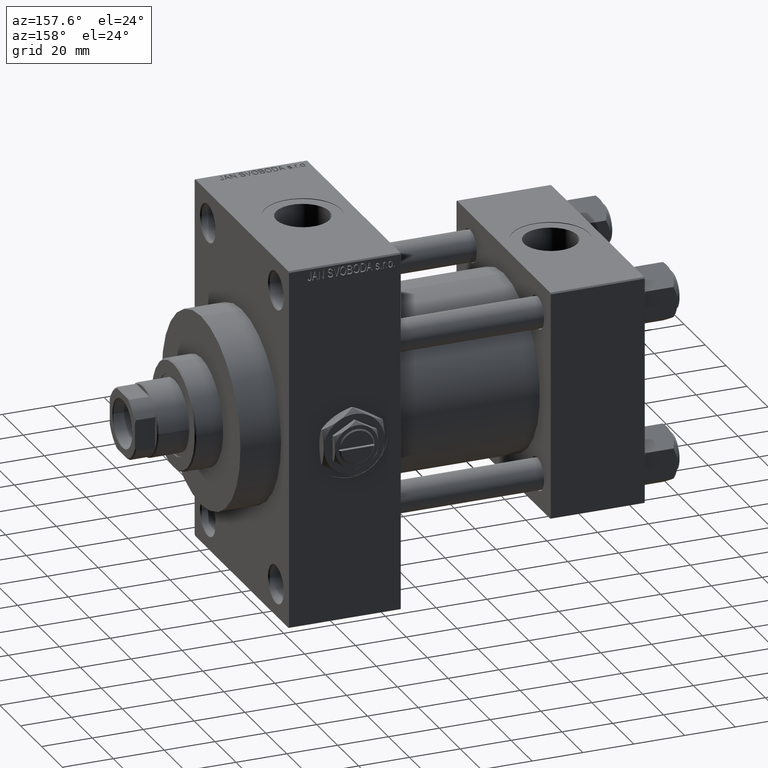
[diagram: clean part render]
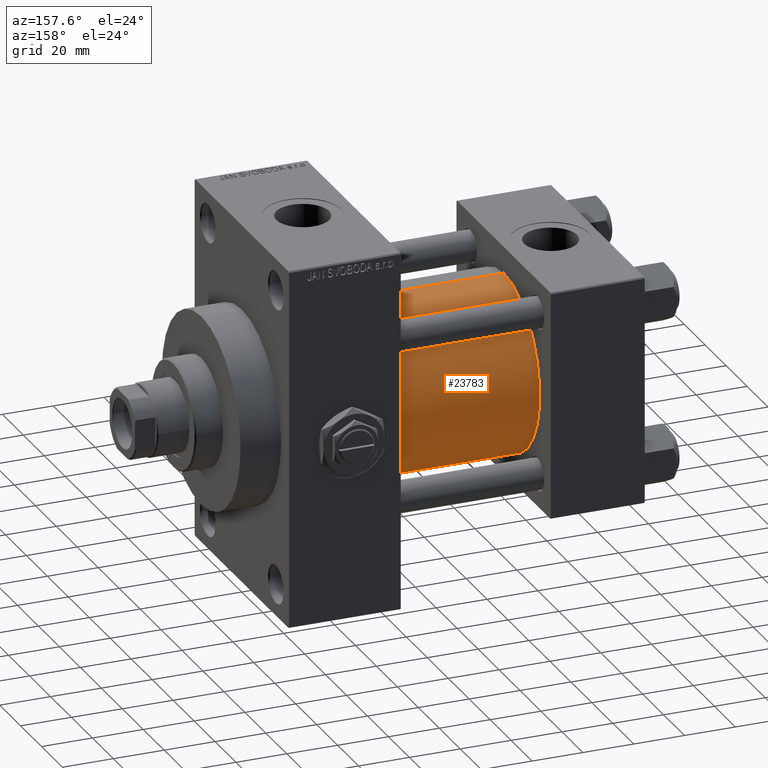
[diagram: same view with one face highlighted and labeled with its STEP entity id]
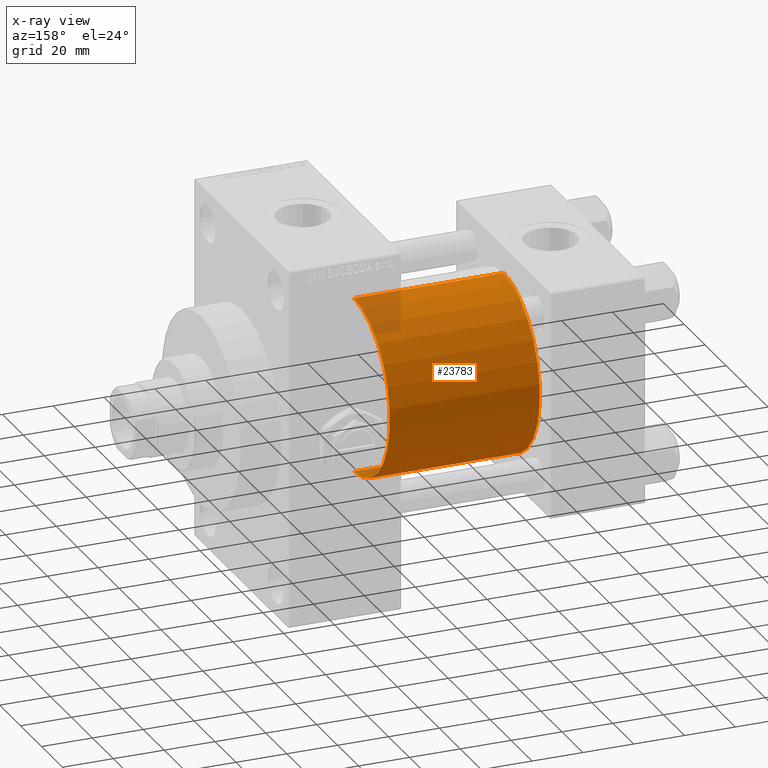
[diagram: x-ray of the same camera — body ghosted, the highlighted face saturated]
A machine part, auxiliary view. The second image highlights one B-rep face of the part: STEP entity #23783.
The next image is the same camera in x-ray: the body ghosted, the highlighted face saturated — about 6% of this face is hidden behind the body in this view.
In plain terms, the highlighted cylindrical surface (partial cylindrical patch) has radius 34.5 mm, axis along (-1, -0, -0).
Its self-contained STEP definition (entity closure, byte-faithful):
#601 = AXIS2_PLACEMENT_3D ( 'NONE', #35375, #46047, #34399 ) ;
#3688 = LINE ( 'NONE', #22738, #17245 ) ;
#4126 = VERTEX_POINT ( 'NONE', #45085 ) ;
#4194 = CIRCLE ( 'NONE', #46102, 34.50000000000000000 ) ;
#4339 = DIRECTION ( 'NONE',  ( 1.000000000000000000, 0.000000000000000000, 0.000000000000000000 ) ) ;
#4696 = CYLINDRICAL_SURFACE ( 'NONE', #601, 34.50000000000000000 ) ;
#7425 = CARTESIAN_POINT ( 'NONE',  ( 96.00000000000000000, -2.602085213965210642E-15, 34.50000000000000000 ) ) ;
#9060 = CARTESIAN_POINT ( 'NONE',  ( 96.00000000000000000, -2.602085213965210642E-15, 34.50000000000000000 ) ) ;
#10379 = VERTEX_POINT ( 'NONE', #37547 ) ;
#10780 = ORIENTED_EDGE ( 'NONE', *, *, #25279, .F. ) ;
#11554 = EDGE_LOOP ( 'NONE', ( #10780, #26347, #41350, #22678 ) ) ;
#12259 = CARTESIAN_POINT ( 'NONE',  ( 96.00000000000000000, -2.602085213965210642E-15, 0.000000000000000000 ) ) ;
#13139 = VECTOR ( 'NONE', #29460, 1000.000000000000000 ) ;
#15845 = FACE_OUTER_BOUND ( 'NONE', #11554, .T. ) ;
#17111 = VERTEX_POINT ( 'NONE', #44610 ) ;
#17245 = VECTOR ( 'NONE', #18794, 1000.000000000000000 ) ;
#18794 = DIRECTION ( 'NONE',  ( -1.000000000000000000, -0.000000000000000000, -0.000000000000000000 ) ) ;
#22678 = ORIENTED_EDGE ( 'NONE', *, *, #47306, .F. ) ;
#22738 = CARTESIAN_POINT ( 'NONE',  ( 96.00000000000000000, 1.622946243093158675E-15, -34.50000000000000000 ) ) ;
#23783 = ADVANCED_FACE ( 'NONE', ( #15845 ), #4696, .T. ) ;
#24307 = DIRECTION ( 'NONE',  ( 0.000000000000000000, 0.000000000000000000, 1.000000000000000000 ) ) ;
#24868 = EDGE_CURVE ( 'NONE', #17111, #10379, #3688, .T. ) ;
#25279 = EDGE_CURVE ( 'NONE', #17111, #42474, #38617, .T. ) ;
#26347 = ORIENTED_EDGE ( 'NONE', *, *, #24868, .T. ) ;
#29460 = DIRECTION ( 'NONE',  ( -1.000000000000000000, -0.000000000000000000, -0.000000000000000000 ) ) ;
#34399 = DIRECTION ( 'NONE',  ( 0.000000000000000000, 0.000000000000000000, 1.000000000000000000 ) ) ;
#35201 = DIRECTION ( 'NONE',  ( 1.000000000000000000, -0.000000000000000000, 0.000000000000000000 ) ) ;
#35375 = CARTESIAN_POINT ( 'NONE',  ( 96.00000000000000000, -2.602085213965210642E-15, 0.000000000000000000 ) ) ;
#37547 = CARTESIAN_POINT ( 'NONE',  ( 37.00000000000000000, 1.622946243093158675E-15, -34.50000000000000000 ) ) ;
#38617 = CIRCLE ( 'NONE', #40218, 34.50000000000000000 ) ;
#40218 = AXIS2_PLACEMENT_3D ( 'NONE', #12259, #4339, #42465 ) ;
#40326 = EDGE_CURVE ( 'NONE', #10379, #4126, #4194, .T. ) ;
#41104 = LINE ( 'NONE', #7425, #13139 ) ;
#41350 = ORIENTED_EDGE ( 'NONE', *, *, #40326, .T. ) ;
#42465 = DIRECTION ( 'NONE',  ( 0.000000000000000000, 0.000000000000000000, -1.000000000000000000 ) ) ;
#42474 = VERTEX_POINT ( 'NONE', #9060 ) ;
#44610 = CARTESIAN_POINT ( 'NONE',  ( 96.00000000000000000, 1.622946243093158675E-15, -34.50000000000000000 ) ) ;
#45085 = CARTESIAN_POINT ( 'NONE',  ( 37.00000000000000000, -2.602085213965210642E-15, 34.50000000000000000 ) ) ;
#46047 = DIRECTION ( 'NONE',  ( -1.000000000000000000, -0.000000000000000000, -0.000000000000000000 ) ) ;
#46102 = AXIS2_PLACEMENT_3D ( 'NONE', #47096, #35201, #24307 ) ;
#47096 = CARTESIAN_POINT ( 'NONE',  ( 37.00000000000000000, -2.602085213965210642E-15, 0.000000000000000000 ) ) ;
#47306 = EDGE_CURVE ( 'NONE', #42474, #4126, #41104, .T. ) ;